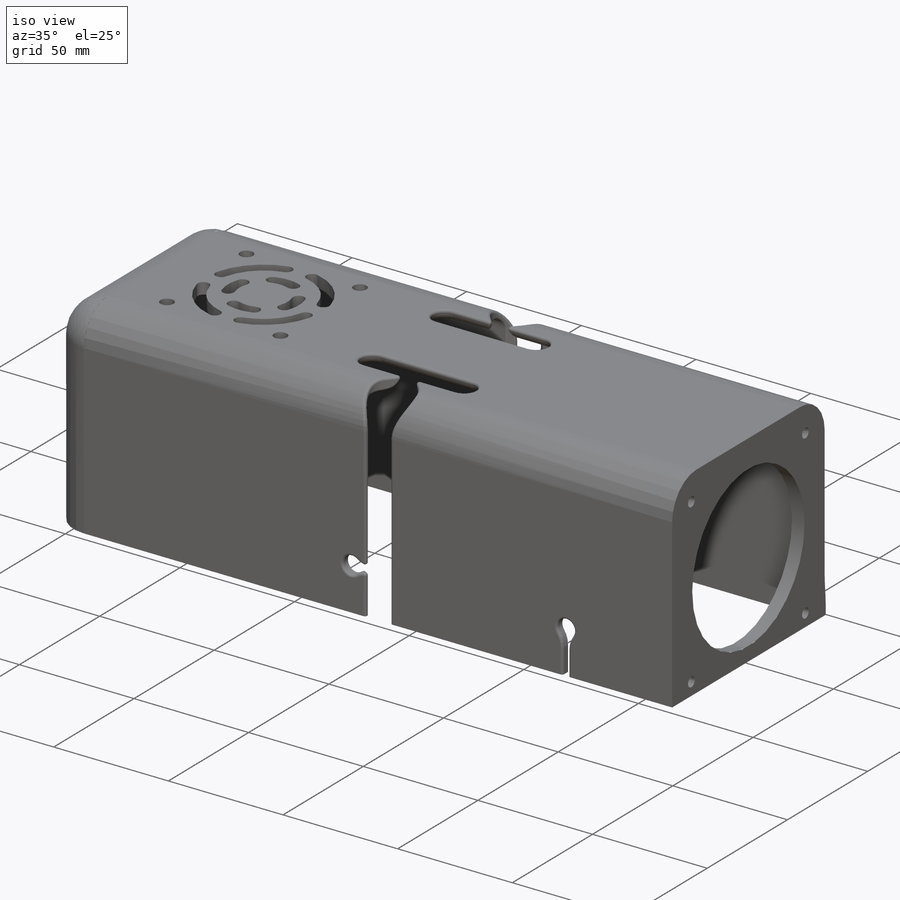
[diagram: iso view]
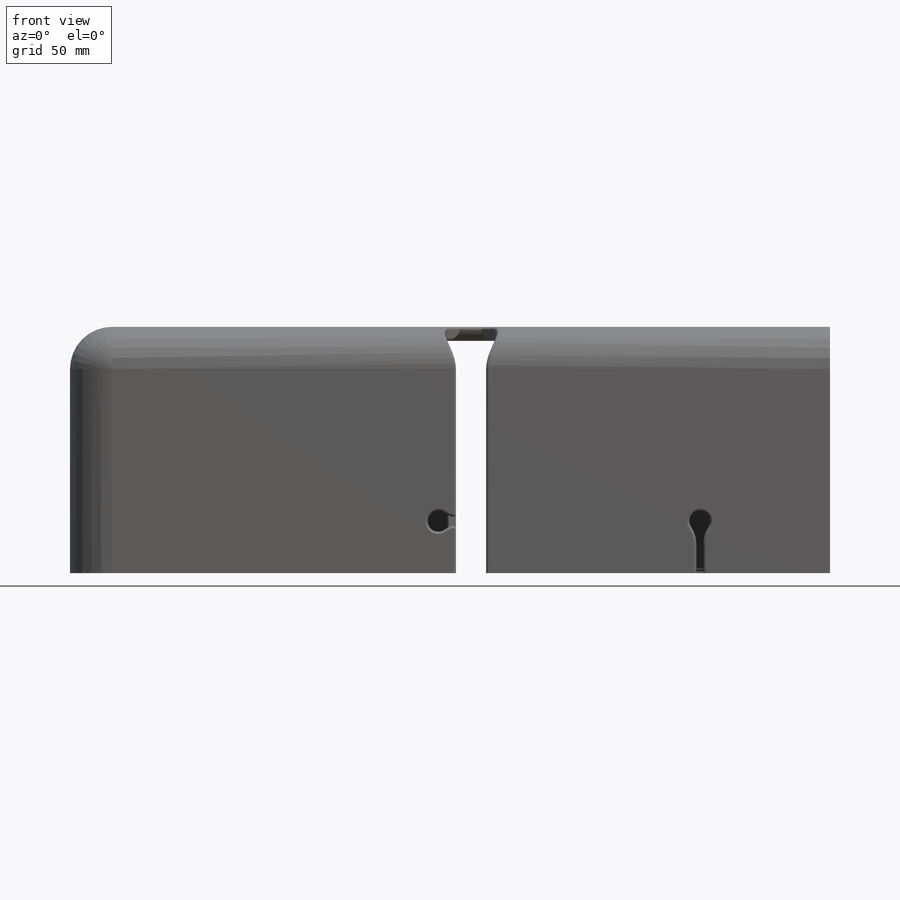
[diagram: front view]
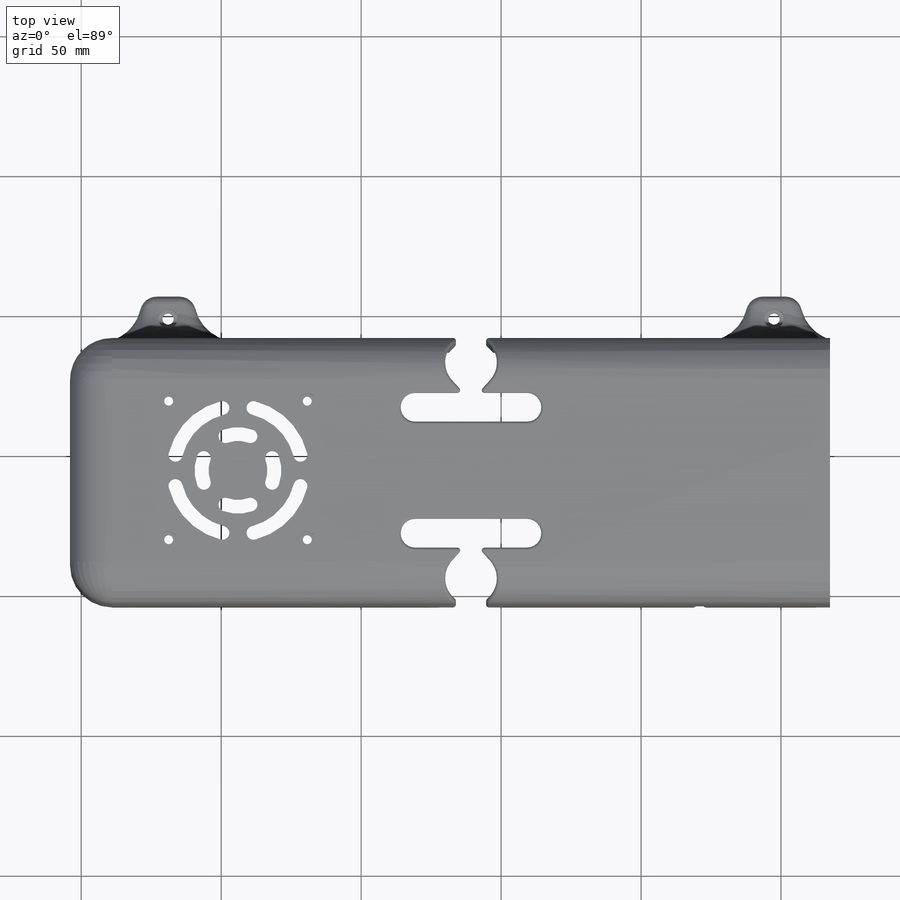
[diagram: top view]
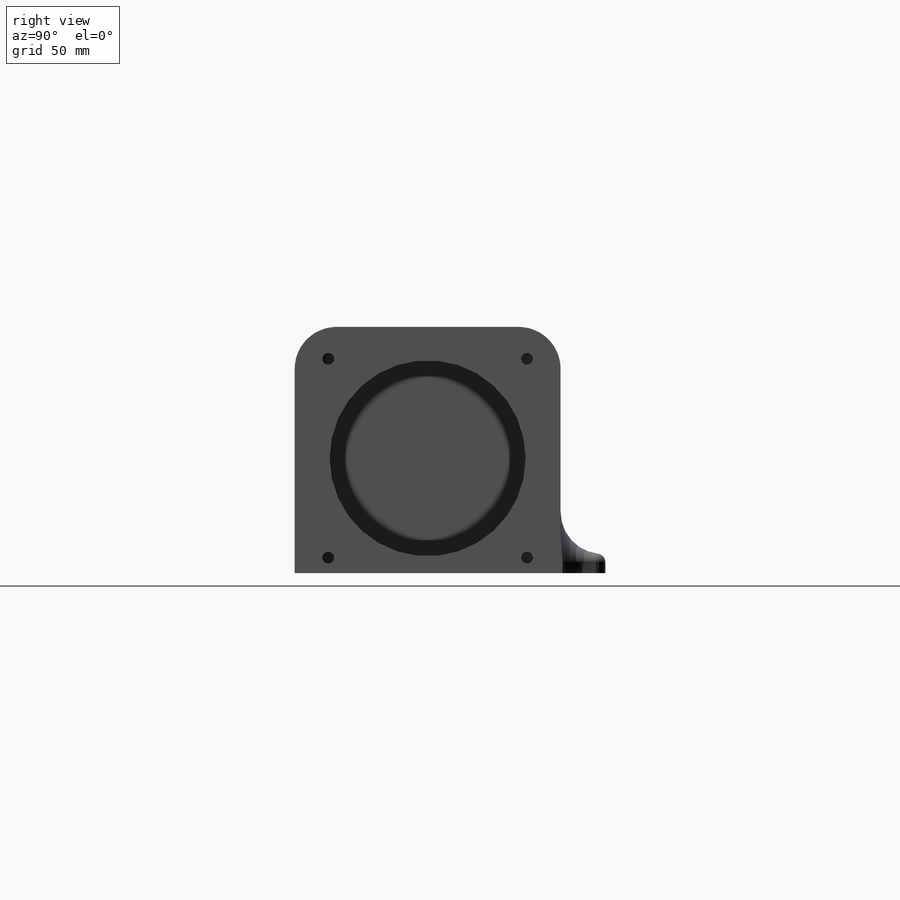
[diagram: right view]
SOLIDWORKS PART (.sldprt)
format: sldprt  version: not decoded by parser v0  size: 1,162,752 bytes
history: native  units: mm
features: sketch x15, fillet x15, cut_extrude x11, plane x5, extrude x4, material x1, pattern_circular x1, mirror x1 (+9 scaffold rows collapsed)
feature tree (62):
  scaffold x9  (default folders/planes/origin — collapsed)
  material  "Material <sin especificar>"
  plane  "Alzado"
  plane  "Planta"
  plane  "Vista lateral"
  sketch  "Croquis1"  dims[D1=262.0mm D2=87.0mm D3=4.0mm]
  extrude  "Saliente-Extruir1"  Depth=83mm
  sketch  "Croquis2"
  extrude  "Saliente-Extruir2"  Depth=5mm
  sketch  "Croquis3"  dims[c1.D1=70.0mm c1.D3=4.2mm c2.D1=70.0mm c2.D2=71.0mm c2.D4=41.0mm]
  cut_extrude  "Cortar-Extruir1"  Depth=20mm
  fillet  "Redondeo4"  Radius=10mm
  fillet  "Redondeo5"  Radius=5mm
  fillet  "Redondeo8"  Radius=15mm
  sketch  "Croquis5"  dims[D1=15.0mm]
  extrude  "Saliente-Extruir3"  Depth=1.5mm
  sketch  "Croquis6"  dims[D1=5.65mm D2=5.65mm D3=5.65mm D4=5.65mm]
  cut_extrude  "Cortar-Extruir5"  Depth=2.6mm
  sketch  "Croquis8"  dims[c1.D3=5.0mm c1.D4=5.0mm c1.D1=15.0mm c1.D2=10.0mm c1.D5=40.0mm c2.D2=40.0mm c2.D3=10.0mm c2.D4=15.0mm c2.D5=40.0mm c2.D6=10.0mm]
  cut_extrude  "Cortar-Extruir6"  Depth=12.6mm
  sketch  "Croquis9"  dims[c1.D2=11.0mm c1.D3=17.0mm c1.D4=17.0mm c1.D5=27.0mm c1.D6=34.0mm c1.D10=2.5mm c1.D1=45.0mm c2.D3=3.5mm c2.D4=22.0mm c2.D5=39.0mm c2.D6=30.5mm c3.D3=3.5mm c3.D4=22.0mm c3.D5=39.0mm c3.D6=30.5mm c4.D3=5.0mm c4.D4=5.0mm c4.D5=5.0mm c4.D6=5.0mm c4.D7=17.0mm c5.D7=45.0deg c5.D8=~4.851479mm c6.D8=14.0deg c6.D9=65.0mm c7.D9=20.0deg c8.D9=65.0mm c9.D9=20.0deg]
  cut_extrude  "Cortar-Extruir7"  [1 undecoded]
  sketch  "Croquis10"  dims[D2=3.2mm D1=49.5mm]
  cut_extrude  "Cortar-Extruir8"  [1 undecoded]
  sketch  "Croquis11"  dims[D1=5.65mm]
  cut_extrude  "Cortar-Extruir9"  Depth=3.1mm
  pattern_circular  "MatrizC3"  Count=4 Angle=360deg
  fillet  "Redondeo10"  Radius=5mm
  sketch  "Croquis12"  dims[D3=4.0mm D5=4.0mm D1=10.0mm D2=20.0mm D4=20.0mm]
  extrude  "Saliente-Extruir4"  Depth=7mm
  sketch  "Croquis13"  dims[D1=7.0mm D2=7.0mm D3=7.0mm D4=7.0mm]
  cut_extrude  "Cortar-Extruir11"  Depth=4.1mm
  sketch  "Croquis14"  dims[c1.D3=7.5mm c1.D6=7.5mm c1.D1=41.0mm c1.D2=18.5mm c1.D4=131.0mm c1.D5=18.5mm c2.D4=136.5mm c2.D1=46.5mm c2.D2=140.0mm c3.D4=18.5mm]
  cut_extrude  "Cortar-Extruir12"  Depth=10mm
  plane  "Plano1"
  mirror  "Simetría1"
  sketch  "Croquis15"
  cut_extrude  "Cortar-Extruir13"  Depth=10mm
  fillet  "Redondeo11"  Radius=6mm
  plane  "Plano2"  Offset=10mm
  sketch  "Croquis16"  dims[D1=~11.008349mm D2=9.0mm D3=2.5mm]
  cut_extrude  "Cortar-Extruir14"  [1 undecoded]
  fillet  "Redondeo13"  Radius=1mm
  fillet  "Redondeo19"  Radius=1mm
  sketch  "Croquis17"  dims[D1=2.5mm D2=2.5mm]
  cut_extrude  "Cortar-Extruir15"  Depth=10mm
  fillet  "Redondeo20"  Radius=10mm
  fillet  "Redondeo21"  Radius=1mm
  fillet  "Redondeo22"  Radius=10mm
  fillet  "Redondeo23"  Radius=1mm
  fillet  "Redondeo24"  Radius=1mm
  fillet  "Redondeo25"  Radius=1mm
  fillet  "Redondeo26"  Radius=3mm
  fillet  "Redondeo27"  Radius=15mm
decode coverage: 41 of 47 modeling features carry decoded parameters
note: ~ marks probable driven/reference dimensions
note: 3 parameter values undecoded
summary: no parameter record found for 3 features
note: suppression state not decoded; provenance and decode notes live in map.json
